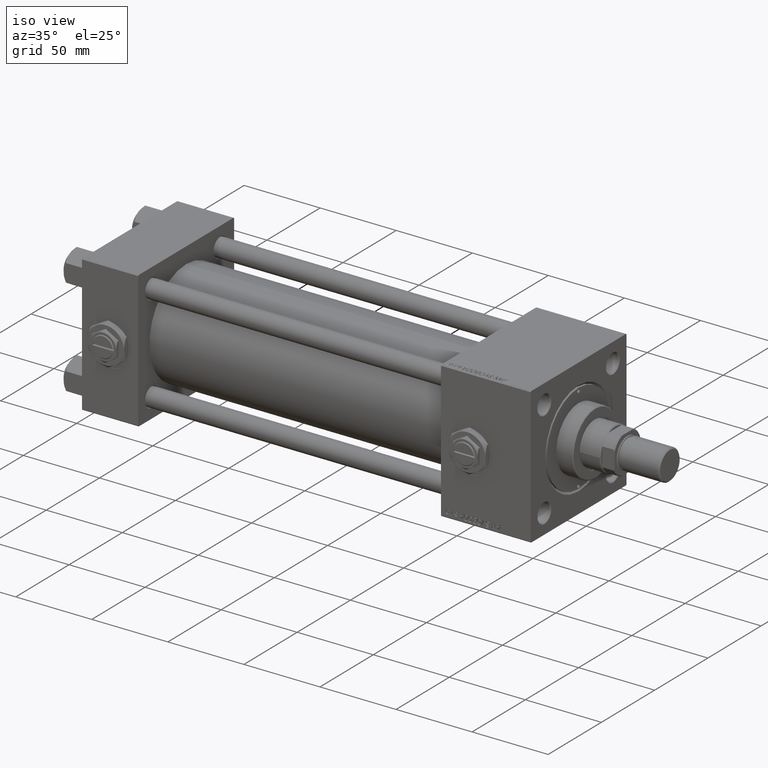
[diagram: clean part render]
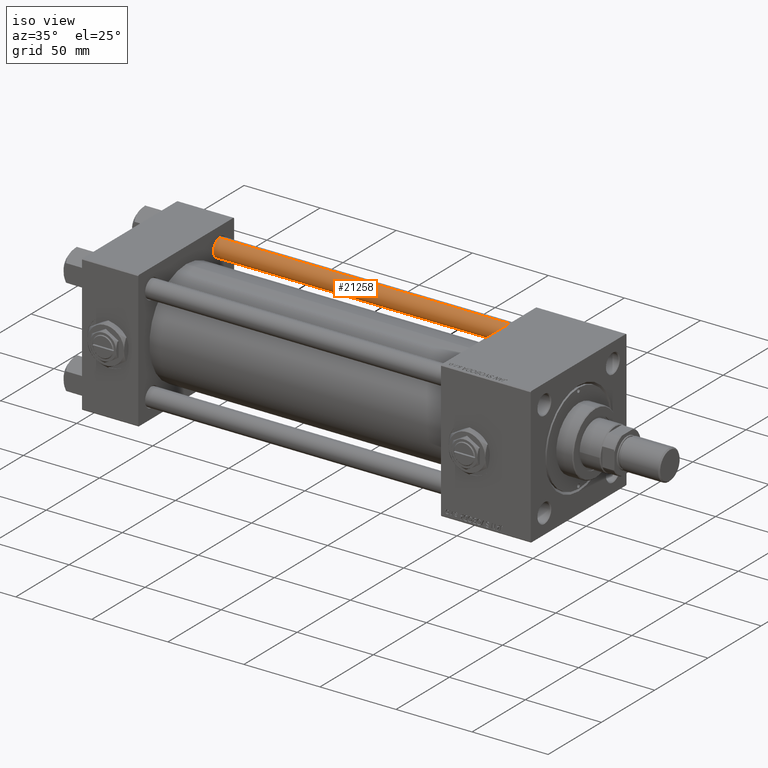
[diagram: same view with one face highlighted and labeled with its STEP entity id]
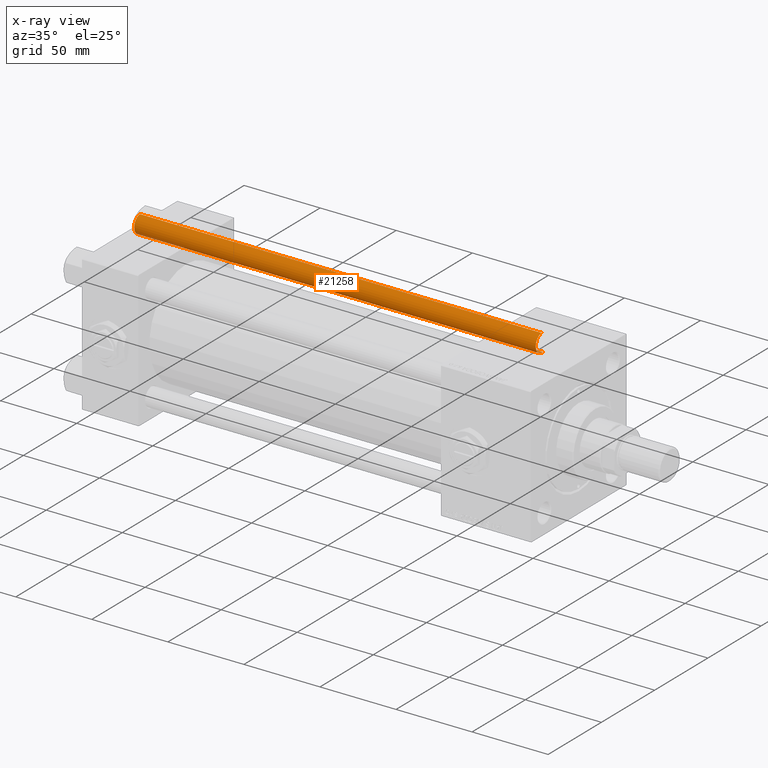
[diagram: x-ray of the same camera — body ghosted, the highlighted face saturated]
A machine part, iso view. The second image highlights one B-rep face of the part: STEP entity #21258.
The next image is the same camera in x-ray: the body ghosted, the highlighted face saturated — about 1% of this face is hidden behind the body in this view.
In plain terms, the highlighted cylindrical surface (edge-blend (fillet) strip) has radius 6 mm, axis along (-1, 0, 0).
Its self-contained STEP definition (entity closure, byte-faithful):
#708 = ORIENTED_EDGE ( 'NONE', *, *, #46301, .F. ) ;
#1011 = AXIS2_PLACEMENT_3D ( 'NONE', #33729, #20666, #24924 ) ;
#1674 = CYLINDRICAL_SURFACE ( 'NONE', #20551, 6.000000000000000888 ) ;
#2462 = CIRCLE ( 'NONE', #51149, 6.000000000000000888 ) ;
#3760 = ORIENTED_EDGE ( 'NONE', *, *, #44330, .T. ) ;
#3909 = VERTEX_POINT ( 'NONE', #37445 ) ;
#5651 = ORIENTED_EDGE ( 'NONE', *, *, #30479, .T. ) ;
#7049 = VERTEX_POINT ( 'NONE', #29514 ) ;
#10244 = DIRECTION ( 'NONE',  ( 1.000000000000000000, 0.000000000000000000, 0.000000000000000000 ) ) ;
#10529 = FACE_OUTER_BOUND ( 'NONE', #14943, .T. ) ;
#11961 = EDGE_CURVE ( 'NONE', #28686, #7049, #13389, .T. ) ;
#13389 = LINE ( 'NONE', #16648, #34461 ) ;
#14022 = DIRECTION ( 'NONE',  ( -1.000000000000000000, 0.000000000000000000, 0.000000000000000000 ) ) ;
#14943 = EDGE_LOOP ( 'NONE', ( #708, #5651, #44883, #3760 ) ) ;
#16648 = CARTESIAN_POINT ( 'NONE',  ( -6.000000000000000888, 0.000000000000000000, 265.0000000000000000 ) ) ;
#16928 = DIRECTION ( 'NONE',  ( -0.000000000000000000, -0.000000000000000000, -1.000000000000000000 ) ) ;
#18035 = CARTESIAN_POINT ( 'NONE',  ( 0.000000000000000000, 0.000000000000000000, 265.0000000000000000 ) ) ;
#20551 = AXIS2_PLACEMENT_3D ( 'NONE', #18035, #50642, #14022 ) ;
#20666 = DIRECTION ( 'NONE',  ( 0.000000000000000000, 0.000000000000000000, -1.000000000000000000 ) ) ;
#21258 = ADVANCED_FACE ( 'NONE', ( #10529 ), #1674, .T. ) ;
#24924 = DIRECTION ( 'NONE',  ( 1.000000000000000000, 0.000000000000000000, 0.000000000000000000 ) ) ;
#28686 = VERTEX_POINT ( 'NONE', #52211 ) ;
#29219 = LINE ( 'NONE', #48761, #33323 ) ;
#29514 = CARTESIAN_POINT ( 'NONE',  ( -6.000000000000000888, 0.000000000000000000, 0.5000000000000004441 ) ) ;
#30479 = EDGE_CURVE ( 'NONE', #47985, #28686, #48898, .T. ) ;
#33323 = VECTOR ( 'NONE', #16928, 1000.000000000000000 ) ;
#33729 = CARTESIAN_POINT ( 'NONE',  ( 0.000000000000000000, 0.000000000000000000, 264.5000000000000000 ) ) ;
#34461 = VECTOR ( 'NONE', #37454, 1000.000000000000000 ) ;
#37445 = CARTESIAN_POINT ( 'NONE',  ( 6.000000000000000888, 7.347880794884120722E-16, 0.5000000000000004441 ) ) ;
#37454 = DIRECTION ( 'NONE',  ( -0.000000000000000000, -0.000000000000000000, -1.000000000000000000 ) ) ;
#44330 = EDGE_CURVE ( 'NONE', #7049, #3909, #2462, .T. ) ;
#44883 = ORIENTED_EDGE ( 'NONE', *, *, #11961, .T. ) ;
#46077 = CARTESIAN_POINT ( 'NONE',  ( 0.000000000000000000, 0.000000000000000000, 0.5000000000000004441 ) ) ;
#46301 = EDGE_CURVE ( 'NONE', #47985, #3909, #29219, .T. ) ;
#47985 = VERTEX_POINT ( 'NONE', #51115 ) ;
#48761 = CARTESIAN_POINT ( 'NONE',  ( 6.000000000000000888, 7.347880794884120722E-16, 265.0000000000000000 ) ) ;
#48898 = CIRCLE ( 'NONE', #1011, 6.000000000000000888 ) ;
#50642 = DIRECTION ( 'NONE',  ( -0.000000000000000000, -0.000000000000000000, -1.000000000000000000 ) ) ;
#50904 = DIRECTION ( 'NONE',  ( -0.000000000000000000, -0.000000000000000000, 1.000000000000000000 ) ) ;
#51115 = CARTESIAN_POINT ( 'NONE',  ( 6.000000000000000888, 7.347880794884120722E-16, 264.5000000000000000 ) ) ;
#51149 = AXIS2_PLACEMENT_3D ( 'NONE', #46077, #50904, #10244 ) ;
#52211 = CARTESIAN_POINT ( 'NONE',  ( -6.000000000000000888, 0.000000000000000000, 264.5000000000000000 ) ) ;